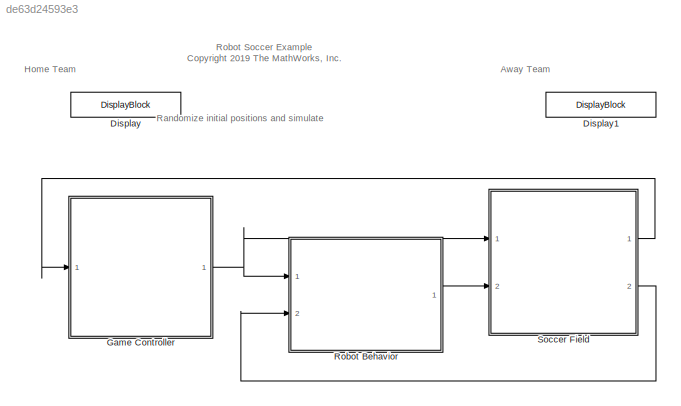
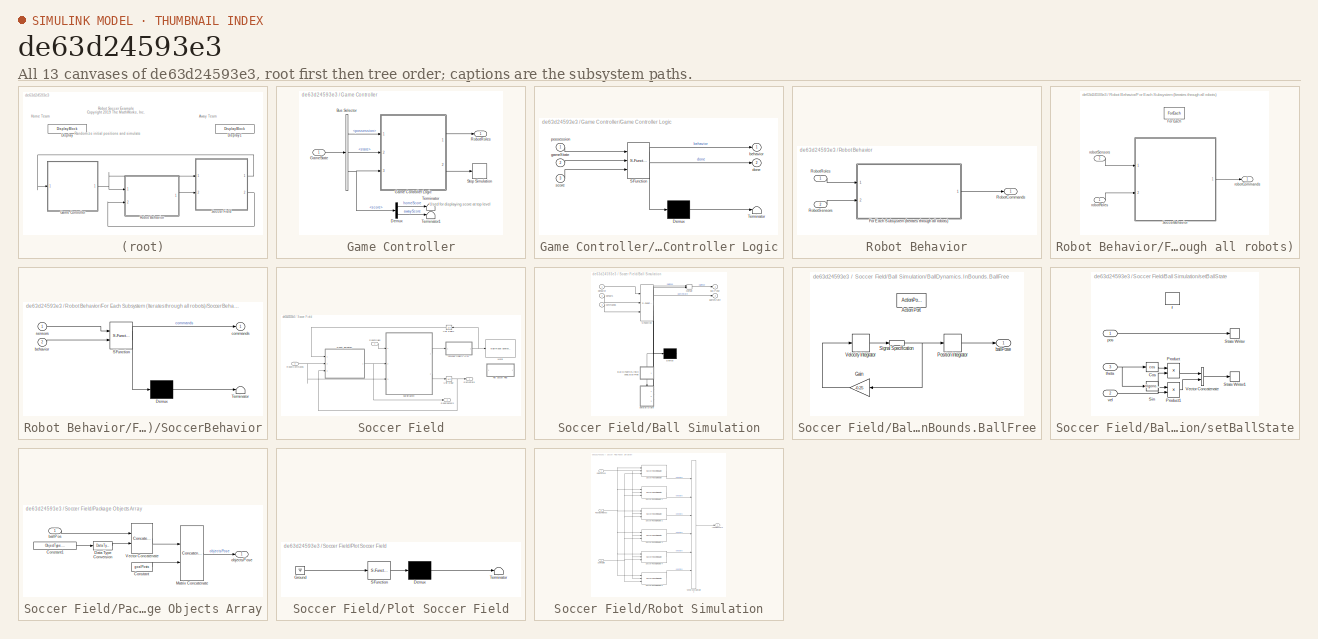
[diagram: thumbnail index - all 13 canvases of the model, root first then tree order]
MODEL slx_de63d24593e3
KIND model
CONFIG AbsTol = auto
CONFIG EnableMultiTasking = off
CONFIG FixedStep = sampleTime
CONFIG MaxStep = auto
CONFIG MinStep = auto
CONFIG PreLoadFcn = robotSoccerParams;
CONFIG RelTol = 1e-3
CONFIG SampleTimeConstraint = Unconstrained
CONFIG Solver = FixedStepAuto
CONFIG SolverName = FixedStepAuto
CONFIG StartTime = 0.0
CONFIG StopTime = inf
BLOCK [DisplayBlock] Display
  LabelPosition = Hide
BLOCK [DisplayBlock] Display1
  LabelPosition = Hide
BLOCK [SubSystem] Game Controller
  Ports = [1, 1]
  RequestExecContextInheritance = off
BLOCK [BusSelector] Game Controller/Bus Selector
  OutputAsBus = off
  OutputSignals = possession,state,score
  Ports = [1, 3]
BLOCK [Demux] Game Controller/Demux
  DisplayOption = bar
  Outputs = 2
  Ports = [1, 2]
BLOCK [SubSystem] Game Controller/Game Controller Logic
  ErrorFcn = Stateflow.Translate.translate
  PermitHierarchicalResolution = ExplicitOnly
  Ports = [3, 2]
  RequestExecContextInheritance = off
  SFBlockType = Chart
  TreatAsAtomicUnit = on
BLOCK [Demux] Game Controller/Game Controller Logic/ Demux 
  Outputs = 1
  Ports = [1, 1]
BLOCK [S-Function] Game Controller/Game Controller Logic/ SFunction 
  EnableBusSupport = off
  FunctionName = sf_sfun
  Parameters = defenderAwayPoses,defenderHomePoses,goalkeeperPoses
  PortCounts = [3 3]
  Ports = [3, 3]
  SFcnIsStateOwnerBlock = off
  SFunctionDeploymentMode = off
  Tag = Stateflow S-Function 4
BLOCK [Terminator] Game Controller/Game Controller Logic/ Terminator 
BLOCK [Outport] Game Controller/Game Controller Logic/behavior
  IconDisplay = Port number
  VectorParamsAs1DForOutWhenUnconnected = off
BLOCK [Outport] Game Controller/Game Controller Logic/done
  IconDisplay = Port number
  Port = 2
  VectorParamsAs1DForOutWhenUnconnected = off
BLOCK [Inport] Game Controller/Game Controller Logic/gameState
  IconDisplay = Port number
  Port = 2
BLOCK [Inport] Game Controller/Game Controller Logic/possession
  IconDisplay = Port number
BLOCK [Inport] Game Controller/Game Controller Logic/score
  IconDisplay = Port number
  Port = 3
BLOCK [Inport] Game Controller/GameState
  IconDisplay = Port number
BLOCK [Outport] Game Controller/RobotRoles
  IconDisplay = Port number
  VectorParamsAs1DForOutWhenUnconnected = off
BLOCK [Stop] Game Controller/Stop Simulation
BLOCK [Terminator] Game Controller/Terminator
BLOCK [Terminator] Game Controller/Terminator1
BLOCK [SubSystem] Robot Behavior
  Ports = [2, 1]
  RequestExecContextInheritance = off
BLOCK [SubSystem] Robot Behavior/For Each Subsystem (Iterates through all robots)
  Ports = [2, 1]
  RequestExecContextInheritance = off
  TreatAsAtomicUnit = on
BLOCK [ForEach] Robot Behavior/For Each Subsystem (Iterates through all robots)/For Each
  DisableCoverage = on
  Ports = []
BLOCK [SubSystem] Robot Behavior/For Each Subsystem (Iterates through all robots)/SoccerBehavior
  ErrorFcn = Stateflow.Translate.translate
  PermitHierarchicalResolution = ExplicitOnly
  Ports = [2, 1]
  RequestExecContextInheritance = off
  SFBlockType = Chart
  TreatAsAtomicUnit = on
BLOCK [Demux] Robot Behavior/For Each Subsystem (Iterates through all robots)/SoccerBehavior/ Demux 
  Outputs = 1
  Ports = [1, 1]
BLOCK [S-Function] Robot Behavior/For Each Subsystem (Iterates through all robots)/SoccerBehavior/ SFunction 
  EnableBusSupport = off
  FunctionName = sf_sfun
  Parameters = angThresh,attackerKickSpeed,attackerMaxGoalDist,attackerMinGoalDist,awayGoalPosition,defenderKickSpeed,distThresh,dribbleKickSpeed,dribbleTime,fieldCenter,fieldLimitsX,fieldLimitsY,goalThresh,goalkeeperKickSpeed,homeGoalPosition,outOfBoundsDist,robotDetectorMaxHits
  PortCounts = [2 2]
  Ports = [2, 2]
  SFcnIsStateOwnerBlock = off
  SFunctionDeploymentMode = off
  Tag = Stateflow S-Function 7
BLOCK [Terminator] Robot Behavior/For Each Subsystem (Iterates through all robots)/SoccerBehavior/ Terminator 
BLOCK [Inport] Robot Behavior/For Each Subsystem (Iterates through all robots)/SoccerBehavior/behavior
  IconDisplay = Port number
  Port = 2
BLOCK [Outport] Robot Behavior/For Each Subsystem (Iterates through all robots)/SoccerBehavior/commands
  IconDisplay = Port number
  VectorParamsAs1DForOutWhenUnconnected = off
BLOCK [Inport] Robot Behavior/For Each Subsystem (Iterates through all robots)/SoccerBehavior/sensors
  IconDisplay = Port number
BLOCK [Outport] Robot Behavior/For Each Subsystem (Iterates through all robots)/robotCommands
  ConcatenationDimension = 1
  IconDisplay = Port number
  VectorParamsAs1DForOutWhenUnconnected = off
BLOCK [Inport] Robot Behavior/For Each Subsystem (Iterates through all robots)/robotRoles
  IconDisplay = Port number
  Partition = on
  PartitionDimension = 1
  PartitionOffset = 0
  PartitionWidth = 1
BLOCK [Inport] Robot Behavior/For Each Subsystem (Iterates through all robots)/robotSensors
  IconDisplay = Port number
  Partition = on
  PartitionDimension = 1
  PartitionOffset = 0
  PartitionWidth = 1
  Port = 2
BLOCK [Outport] Robot Behavior/RobotCommands
  IconDisplay = Port number
  OutDataTypeStr = Bus: RobotCommandBus
  PortDimensions = 2
  VectorParamsAs1DForOutWhenUnconnected = off
BLOCK [Inport] Robot Behavior/RobotRoles
  IconDisplay = Port number
BLOCK [Inport] Robot Behavior/RobotSensors
  IconDisplay = Port number
  Port = 2
BLOCK [SubSystem] Soccer Field
  Ports = [2, 2]
  RequestExecContextInheritance = off
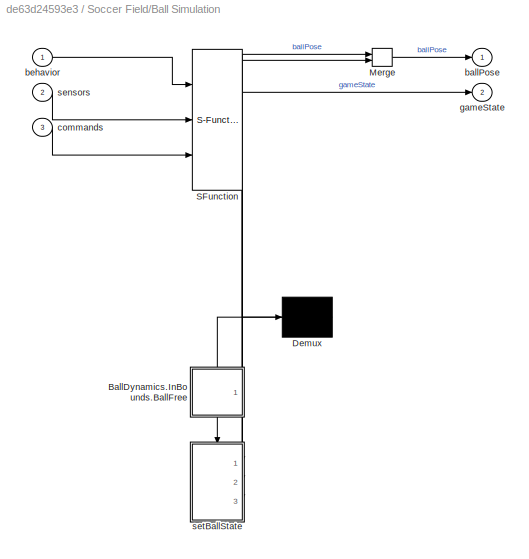
BLOCK [SubSystem] Soccer Field/Ball Simulation
  ErrorFcn = Stateflow.Translate.translate
  PermitHierarchicalResolution = ExplicitOnly
  Ports = [3, 2]
  RequestExecContextInheritance = off
  SFBlockType = Chart
  TreatAsAtomicUnit = on
BLOCK [Demux] Soccer Field/Ball Simulation/ Demux 
  Outputs = 1
  Ports = [1, 1]
BLOCK [Merge] Soccer Field/Ball Simulation/ Merge 
  Ports = [2, 1]
BLOCK [S-Function] Soccer Field/Ball Simulation/ SFunction 
  EnableBusSupport = off
  FunctionName = sf_sfun
  Parameters = ballAngleNoise,ballThresh,ballVelNoise,fieldLimitsX,fieldLimitsY,goalPosts,initBallPos,numRobots,outOfBoundsDist,robotRadius
  PortCounts = [3 6]
  Ports = [3, 6]
  SFcnIsStateOwnerBlock = off
  SFunctionDeploymentMode = off
  Tag = Stateflow S-Function 1
BLOCK [SubSystem] Soccer Field/Ball Simulation/BallDynamics.InBounds.BallFree
  Ports = [0, 1, 0, 0, 0, 0, 0, 1]
  PreDeleteFcn = Stateflow.SLINSF.SimulinkMan.removePreDeleteFcn
  RequestExecContextInheritance = off
  UndoDeleteFcn = Stateflow.SLINSF.SimulinkMan.restorePreDeleteFcn
BLOCK [ActionPort] Soccer Field/Ball Simulation/BallDynamics.InBounds.BallFree/Action Port
  CopyFcn = Stateflow.SLINSF.SimulinkMan.removeBlockPreDeleteFcn
  PreDeleteFcn = Stateflow.SLINSF.SimulinkMan.unsafePredeleteFcn
BLOCK [Gain] Soccer Field/Ball Simulation/BallDynamics.InBounds.BallFree/Gain
  Gain = -0.25
  OutDataTypeStr = Inherit: Inherit via internal rule
  ParamDataTypeStr = Inherit: Inherit via internal rule
  SaturateOnIntegerOverflow = off
BLOCK [DiscreteIntegrator] Soccer Field/Ball Simulation/BallDynamics.InBounds.BallFree/Position Integrator
  ICPrevOutput = DiscIntNeverNeededParam
  ICPrevScaledInput = DiscIntNeverNeededParam
  InitialCondition = initBallPos
  InitialConditionSetting = Auto
  Ports = [1, 1]
  SampleTime = -1
  StateName = ballPos
BLOCK [SignalSpecification] Soccer Field/Ball Simulation/BallDynamics.InBounds.BallFree/Signal Specification
  Dimensions = [1 2]
BLOCK [DiscreteIntegrator] Soccer Field/Ball Simulation/BallDynamics.InBounds.BallFree/Velocity Integrator
  ICPrevOutput = DiscIntNeverNeededParam
  ICPrevScaledInput = DiscIntNeverNeededParam
  InitialCondition = [0 0]
  InitialConditionSetting = Auto
  Ports = [1, 1]
  SampleTime = -1
  StateName = ballVel
BLOCK [Outport] Soccer Field/Ball Simulation/BallDynamics.InBounds.BallFree/ballPose
  IconDisplay = Port number
  VectorParamsAs1DForOutWhenUnconnected = off
BLOCK [Outport] Soccer Field/Ball Simulation/ballPose
  IconDisplay = Port number
  VectorParamsAs1DForOutWhenUnconnected = off
BLOCK [Inport] Soccer Field/Ball Simulation/behavior
  IconDisplay = Port number
BLOCK [Inport] Soccer Field/Ball Simulation/commands
  IconDisplay = Port number
  Port = 3
BLOCK [Outport] Soccer Field/Ball Simulation/gameState
  IconDisplay = Port number
  Port = 2
  VectorParamsAs1DForOutWhenUnconnected = off
BLOCK [Inport] Soccer Field/Ball Simulation/sensors
  IconDisplay = Port number
  Port = 2
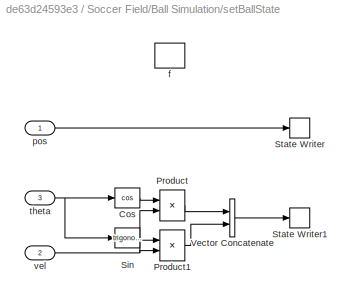
BLOCK [SubSystem] Soccer Field/Ball Simulation/setBallState
  Ports = [3, 0, 0, 1]
  PreDeleteFcn = Stateflow.SLINSF.SimulinkMan.removePreDeleteFcn
  RequestExecContextInheritance = off
  UndoDeleteFcn = Stateflow.SLINSF.SimulinkMan.restorePreDeleteFcn
BLOCK [Trigonometry] Soccer Field/Ball Simulation/setBallState/Cos
  Operator = cos
  Ports = [1, 1]
BLOCK [Product] Soccer Field/Ball Simulation/setBallState/Product
  InputSameDT = off
  OutDataTypeStr = Inherit: Inherit via internal rule
  Ports = [2, 1]
  RndMeth = Floor
  SaturateOnIntegerOverflow = off
BLOCK [Product] Soccer Field/Ball Simulation/setBallState/Product1
  InputSameDT = off
  OutDataTypeStr = Inherit: Inherit via internal rule
  Ports = [2, 1]
  RndMeth = Floor
  SaturateOnIntegerOverflow = off
BLOCK [Trigonometry] Soccer Field/Ball Simulation/setBallState/Sin
  Ports = [1, 1]
BLOCK [StateWriter] Soccer Field/Ball Simulation/setBallState/State Writer
  StateName = ballPos
  StateOwnerBlock = ../../BallDynamics.InBounds.BallFree/Position Integrator
BLOCK [StateWriter] Soccer Field/Ball Simulation/setBallState/State Writer1
  StateName = ballVel
  StateOwnerBlock = ../../BallDynamics.InBounds.BallFree/Velocity Integrator
BLOCK [Concatenate] Soccer Field/Ball Simulation/setBallState/Vector Concatenate
  ConcatenateDimension = 2
  Mode = Multidimensional array
  Ports = [2, 1]
BLOCK [TriggerPort] Soccer Field/Ball Simulation/setBallState/f
  CopyFcn = Stateflow.SLINSF.SimulinkMan.removeBlockPreDeleteFcn
  Ports = []
  PreDeleteFcn = Stateflow.SLINSF.SimulinkMan.unsafePredeleteFcn
  StatesWhenEnabling = held
  TriggerType = function-call
  VariantControl = (inherit)
BLOCK [Inport] Soccer Field/Ball Simulation/setBallState/pos
  IconDisplay = Port number
  OutDataTypeStr = double
  PortDimensions = [1 2]
  SignalType = real
  VarSizeSig = No
BLOCK [Inport] Soccer Field/Ball Simulation/setBallState/theta
  IconDisplay = Port number
  OutDataTypeStr = double
  Port = 3
  PortDimensions = 1
  SignalType = real
  VarSizeSig = No
BLOCK [Inport] Soccer Field/Ball Simulation/setBallState/vel
  IconDisplay = Port number
  OutDataTypeStr = double
  Port = 2
  PortDimensions = 1
  SignalType = real
  VarSizeSig = No
BLOCK [Outport] Soccer Field/GameState
  IconDisplay = Port number
  VectorParamsAs1DForOutWhenUnconnected = off
BLOCK [SubSystem] Soccer Field/Package Objects Array
  Ports = [1, 1]
  RequestExecContextInheritance = off
BLOCK [Constant] Soccer Field/Package Objects Array/Constant
  Value = goalPosts
  VectorParams1D = off
BLOCK [Constant] Soccer Field/Package Objects Array/Constant1
  Value = ObjectType.Ball
BLOCK [DataTypeConversion] Soccer Field/Package Objects Array/Data Type Conversion
  RndMeth = Floor
  SaturateOnIntegerOverflow = off
BLOCK [Concatenate] Soccer Field/Package Objects Array/Matrix Concatenate
  Mode = Multidimensional array
  Ports = [2, 1]
BLOCK [Concatenate] Soccer Field/Package Objects Array/Vector Concatenate
  ConcatenateDimension = 2
  Mode = Multidimensional array
  Ports = [2, 1]
BLOCK [Inport] Soccer Field/Package Objects Array/ballPos
  IconDisplay = Port number
BLOCK [Outport] Soccer Field/Package Objects Array/objectsPose
  IconDisplay = Port number
  VectorParamsAs1DForOutWhenUnconnected = off
BLOCK [SubSystem] Soccer Field/Plot Soccer Field
  ErrorFcn = Stateflow.Translate.translate
  PermitHierarchicalResolution = ExplicitOnly
  Ports = []
  RequestExecContextInheritance = off
  SFBlockType = MATLAB Function
  TreatAsAtomicUnit = on
BLOCK [Demux] Soccer Field/Plot Soccer Field/ Demux 
  Outputs = 1
  Ports = [1, 1]
BLOCK [Ground] Soccer Field/Plot Soccer Field/ Ground 
BLOCK [S-Function] Soccer Field/Plot Soccer Field/ SFunction 
  EnableBusSupport = off
  FunctionName = sf_sfun
  PortCounts = [1 1]
  Ports = [1, 1]
  SFcnIsStateOwnerBlock = off
  SFunctionDeploymentMode = off
  Tag = Stateflow S-Function 2
BLOCK [Terminator] Soccer Field/Plot Soccer Field/ Terminator 
BLOCK [SubSystem] Soccer Field/Robot Simulation
  Ports = [3, 1]
  RequestExecContextInheritance = off
BLOCK [Inport] Soccer Field/Robot Simulation/RobotCommands
  IconDisplay = Port number
  Port = 2
BLOCK [Reference] Soccer Field/Robot Simulation/Soccer Robot Simulator  REF=soccerRobotLib/Soccer Robot Simulator
  Ports = [3, 1]
  SourceBlock = soccerRobotLib/Soccer Robot Simulator
  SourceType = Soccer Robot Simulation
BLOCK [Reference] Soccer Field/Robot Simulation/Soccer Robot Simulator1  REF=soccerRobotLib/Soccer Robot Simulator
  Ports = [3, 1]
  SourceBlock = soccerRobotLib/Soccer Robot Simulator
  SourceType = Soccer Robot Simulation
BLOCK [Reference] Soccer Field/Robot Simulation/Soccer Robot Simulator2  REF=soccerRobotLib/Soccer Robot Simulator
  Ports = [3, 1]
  SourceBlock = soccerRobotLib/Soccer Robot Simulator
  SourceType = Soccer Robot Simulation
BLOCK [Reference] Soccer Field/Robot Simulation/Soccer Robot Simulator3  REF=soccerRobotLib/Soccer Robot Simulator
  Ports = [3, 1]
  SourceBlock = soccerRobotLib/Soccer Robot Simulator
  SourceType = Soccer Robot Simulation
BLOCK [Reference] Soccer Field/Robot Simulation/Soccer Robot Simulator4  REF=soccerRobotLib/Soccer Robot Simulator
  Ports = [3, 1]
  SourceBlock = soccerRobotLib/Soccer Robot Simulator
  SourceType = Soccer Robot Simulation
BLOCK [Reference] Soccer Field/Robot Simulation/Soccer Robot Simulator5  REF=soccerRobotLib/Soccer Robot Simulator
  Ports = [3, 1]
  SourceBlock = soccerRobotLib/Soccer Robot Simulator
  SourceType = Soccer Robot Simulation
BLOCK [Concatenate] Soccer Field/Robot Simulation/Vector Concatenate1
  NumInputs = 6
  Ports = [6, 1]
BLOCK [Inport] Soccer Field/Robot Simulation/gameState
  IconDisplay = Port number
  Port = 3
BLOCK [Inport] Soccer Field/Robot Simulation/objectsPose
  IconDisplay = Port number
BLOCK [Outport] Soccer Field/Robot Simulation/robotSensors
  IconDisplay = Port number
  VectorParamsAs1DForOutWhenUnconnected = off
BLOCK [Inport] Soccer Field/RobotCommands
  IconDisplay = Port number
  Port = 2
BLOCK [Inport] Soccer Field/RobotRoles
  IconDisplay = Port number
BLOCK [Outport] Soccer Field/RobotSensors
  IconDisplay = Port number
  Port = 2
  VectorParamsAs1DForOutWhenUnconnected = off
BLOCK [UnitDelay] Soccer Field/Unit Delay
  HasFrameUpgradeWarning = on
  InitialCondition = initGameState
  SampleTime = -1
BLOCK [UnitDelay] Soccer Field/Unit Delay1
  HasFrameUpgradeWarning = on
  InitialCondition = [initBallPos double(ObjectType.Ball); goalPosts]
  SampleTime = -1
BLOCK [Reference] Soccer Field/World  REF=mobileRoboticsLib/Environments/Multi-Robot Environment
  Ports = [1]
  SourceBlock = mobileRoboticsLib/Environments/Multi-Robot Environment
  SourceProductName = Mobile Robotics Simulation Toolbox
  SourceType = Multi-Robot Environment
ANNOTATION (root): Randomize initial positions and simulate
ANNOTATION (root): Robot Soccer Example <copyright redacted>
ANNOTATION (root): Away Team
ANNOTATION (root): Home Team
ANNOTATION Game Controller: Used for displaying score at top level
LINE Game Controller/Bus Selector:1 -> Game Controller/Game Controller Logic:1
LINE Game Controller/Bus Selector:2 -> Game Controller/Game Controller Logic:2
NET Game Controller/Bus Selector:3 -> Game Controller/Demux:1, Game Controller/Game Controller Logic:3
LINE Game Controller/Demux:1 -> Game Controller/Terminator:1
LINE Game Controller/Demux:2 -> Game Controller/Terminator1:1
LINE Game Controller/Game Controller Logic:1 -> Game Controller/RobotRoles:1
LINE Game Controller/Game Controller Logic:2 -> Game Controller/Stop Simulation:1
LINE Game Controller/GameState:1 -> Game Controller/Bus Selector:1
NET Game Controller:1 -> Robot Behavior:1, Soccer Field:1
LINE Robot Behavior/For Each Subsystem (Iterates through all robots)/SoccerBehavior:1 -> Robot Behavior/For Each Subsystem (Iterates through all robots)/robotCommands:1
LINE Robot Behavior/For Each Subsystem (Iterates through all robots)/robotRoles:1 -> Robot Behavior/For Each Subsystem (Iterates through all robots)/SoccerBehavior:2
LINE Robot Behavior/For Each Subsystem (Iterates through all robots)/robotSensors:1 -> Robot Behavior/For Each Subsystem (Iterates through all robots)/SoccerBehavior:1
LINE Robot Behavior/For Each Subsystem (Iterates through all robots):1 -> Robot Behavior/RobotCommands:1
LINE Robot Behavior/RobotRoles:1 -> Robot Behavior/For Each Subsystem (Iterates through all robots):1
LINE Robot Behavior/RobotSensors:1 -> Robot Behavior/For Each Subsystem (Iterates through all robots):2
LINE Robot Behavior:1 -> Soccer Field:2
LINE Soccer Field/Ball Simulation:1 -> Soccer Field/Package Objects Array:1
LINE Soccer Field/Ball Simulation:2 -> Soccer Field/Unit Delay:1
LINE Soccer Field/Package Objects Array/Constant1:1 -> Soccer Field/Package Objects Array/Data Type Conversion:1
LINE Soccer Field/Package Objects Array/Constant:1 -> Soccer Field/Package Objects Array/Matrix Concatenate:2
LINE Soccer Field/Package Objects Array/Data Type Conversion:1 -> Soccer Field/Package Objects Array/Vector Concatenate:2
LINE Soccer Field/Package Objects Array/Matrix Concatenate:1 -> Soccer Field/Package Objects Array/objectsPose:1
LINE Soccer Field/Package Objects Array/Vector Concatenate:1 -> Soccer Field/Package Objects Array/Matrix Concatenate:1
LINE Soccer Field/Package Objects Array/ballPos:1 -> Soccer Field/Package Objects Array/Vector Concatenate:1
NET Soccer Field/Package Objects Array:1 -> Soccer Field/Unit Delay1:1, Soccer Field/World:1
NET Soccer Field/Robot Simulation/RobotCommands:1 -> Soccer Field/Robot Simulation/Soccer Robot Simulator1:1, Soccer Field/Robot Simulation/Soccer Robot Simulator2:1, Soccer Field/Robot Simulation/Soccer Robot Simulator3:1, Soccer Field/Robot Simulation/Soccer Robot Simulator4:1, Soccer Field/Robot Simulation/Soccer Robot Simulator5:1, Soccer Field/Robot Simulation/Soccer Robot Simulator:1
LINE Soccer Field/Robot Simulation/Soccer Robot Simulator1:1 -> Soccer Field/Robot Simulation/Vector Concatenate1:2
LINE Soccer Field/Robot Simulation/Soccer Robot Simulator2:1 -> Soccer Field/Robot Simulation/Vector Concatenate1:3
LINE Soccer Field/Robot Simulation/Soccer Robot Simulator3:1 -> Soccer Field/Robot Simulation/Vector Concatenate1:4
LINE Soccer Field/Robot Simulation/Soccer Robot Simulator4:1 -> Soccer Field/Robot Simulation/Vector Concatenate1:5
LINE Soccer Field/Robot Simulation/Soccer Robot Simulator5:1 -> Soccer Field/Robot Simulation/Vector Concatenate1:6
LINE Soccer Field/Robot Simulation/Soccer Robot Simulator:1 -> Soccer Field/Robot Simulation/Vector Concatenate1:1
LINE Soccer Field/Robot Simulation/Vector Concatenate1:1 -> Soccer Field/Robot Simulation/robotSensors:1
NET Soccer Field/Robot Simulation/gameState:1 -> Soccer Field/Robot Simulation/Soccer Robot Simulator1:3, Soccer Field/Robot Simulation/Soccer Robot Simulator2:3, Soccer Field/Robot Simulation/Soccer Robot Simulator3:3, Soccer Field/Robot Simulation/Soccer Robot Simulator4:3, Soccer Field/Robot Simulation/Soccer Robot Simulator5:3, Soccer Field/Robot Simulation/Soccer Robot Simulator:3
NET Soccer Field/Robot Simulation/objectsPose:1 -> Soccer Field/Robot Simulation/Soccer Robot Simulator1:2, Soccer Field/Robot Simulation/Soccer Robot Simulator2:2, Soccer Field/Robot Simulation/Soccer Robot Simulator3:2, Soccer Field/Robot Simulation/Soccer Robot Simulator4:2, Soccer Field/Robot Simulation/Soccer Robot Simulator5:2, Soccer Field/Robot Simulation/Soccer Robot Simulator:2
NET Soccer Field/Robot Simulation:1 -> Soccer Field/Ball Simulation:2, Soccer Field/RobotSensors:1
NET Soccer Field/RobotCommands:1 -> Soccer Field/Ball Simulation:3, Soccer Field/Robot Simulation:2
LINE Soccer Field/RobotRoles:1 -> Soccer Field/Ball Simulation:1
LINE Soccer Field/Unit Delay1:1 -> Soccer Field/Robot Simulation:1
NET Soccer Field/Unit Delay:1 -> Soccer Field/GameState:1, Soccer Field/Robot Simulation:3
LINE Soccer Field:1 -> Game Controller:1
LINE Soccer Field:2 -> Robot Behavior:2
note: NET lines group one-source signal fan-out (src -> all destinations, sorted); 1:1 wires keep LINE
CHART Soccer Field/Ball Simulation states=13 transitions=21
  STATE_LABEL "BallPossession\nen:\ngameState.possession = 0;\nen,du:\n% Calculate distances from robots to ball\n% (Goalkeepers get 2x the range)\nfor idx = 1:numRobots\n    ballDists(idx) = norm( sensors(idx).pose(1:2) - ballPose' );\n    if behavior(idx).role == Role.Goalkeeper\n        ballDists(idx) = ballDists(idx)/2;\n    end\nend\n% Find the robot index of the current and latest possessions\nrobotIdx = findPossession...<+213ch>"
  STATE_LABEL "BallDynamics\nen:\ncoder.extrinsic('randn'); % Lets us use MATLAB's interpreted RNG\nsetBallState(initBallPos,0,0);"
  STATE_LABEL 'InBounds\nen, du:\nrandNum = randn(2,1);\ngameState.state = getGameState;'
  STATE_LABEL 'BallFree'
  STATE_LABEL 'BallHeld\nen: gameState.possession = robotIdx;\nen,du:\nballPose = [robotPose(1) robotPose(2)] + ...\n    (robotRadius+ballThresh)*[cos(robotPose(3)) sin(robotPose(3))];\n'
  STATE_LABEL '[action == RobotAction.KickBall]\n{setBallState(ballPose,ballVel + ballVelNoise*randNum(1), ... \n robotPose(3) + ballAngleNoise*randNum(2));\ngameState.possession = 0;}'
  STATE_LABEL '[after(2,sec) && ... \n robotIdx > 0]'
  STATE_LABEL 'OutOfBounds\nen:\n% If a goal is scored, increment the score\nif gameState.state == GameState.GoalScored\n    ballPose = initBallPos;\n    teamIdx = behavior(lastPossession).team;\n    gameState.score(teamIdx) = gameState.score(teamIdx) + 1;\n    % Else, place the ball back in bounds\nelse\n    ballPose = placeBallInBounds();\nend\nsetBallState(ballPose,0,robotPose(3));'
  STATE_LABEL 'after(1,sec)'
  STATE_LABEL '[gameState.state ~= GameState.InPlay]'
  STATE_LABEL 'InBounds\nen, du:\nrandNum = randn(2,1);\ngameState.state = getGameState;'
  STATE_LABEL 'BallFree'
  STATE_LABEL 'BallHeld\nen: gameState.possession = robotIdx;\nen,du:\nballPose = [robotPose(1) robotPose(2)] + ...\n    (robotRadius+ballThresh)*[cos(robotPose(3)) sin(robotPose(3))];\n'
  STATE_LABEL '[action == RobotAction.KickBall]\n{setBallState(ballPose,ballVel + ballVelNoise*randNum(1), ... \n robotPose(3) + ballAngleNoise*randNum(2));\ngameState.possession = 0;}'
  STATE_LABEL '[after(2,sec) && ... \n robotIdx > 0]'
  STATE_LABEL 'BallFree'
  STATE_LABEL 'BallHeld\nen: gameState.possession = robotIdx;\nen,du:\nballPose = [robotPose(1) robotPose(2)] + ...\n    (robotRadius+ballThresh)*[cos(robotPose(3)) sin(robotPose(3))];\n'
  STATE_LABEL 'OutOfBounds\nen:\n% If a goal is scored, increment the score\nif gameState.state == GameState.GoalScored\n    ballPose = initBallPos;\n    teamIdx = behavior(lastPossession).team;\n    gameState.score(teamIdx) = gameState.score(teamIdx) + 1;\n    % Else, place the ball back in bounds\nelse\n    ballPose = placeBallInBounds();\nend\nsetBallState(ballPose,0,robotPose(3));'
  STATE_LABEL 'setBallState(pos,vel,theta)'
  STATE_LABEL 'rIdx = findPossession'
  STATE_LABEL 'nearIdx = findNearestHoldingRobot'
  STATE_LABEL 'SCRIPT:\nfunction rIdx = findNearestHoldingRobot\n% Finds possession based on the commands to all the robots \n% and their distances to the ball\n\n[~,inds] = sort(ballDists);\nrIdx = 0;\nfor idx = 1:numRobots\n    if (commands(inds(idx)).action == RobotAction.HoldBall) && ....\n       (ballDists(inds(idx)) <= ballThresh)\n        rIdx = inds(idx);\n        return;\n    end\nend\n\nend'
  STATE_LABEL '% If the robot that previously possessed the ball is still holding it, keep the same index\n[(gameState.possession > 0) && ...\n(commands(gameState.possession).action == RobotAction.HoldBall)]'
  STATE_LABEL '% Else, find another valid robot holder\n{rIdx = findNearestHoldingRobot;}'
  STATE_LABEL '{rIdx = gameState.possession;}'
  STATE_LABEL 'nearIdx = findNearestHoldingRobot'
  STATE_LABEL 'SCRIPT:\nfunction rIdx = findNearestHoldingRobot\n% Finds possession based on the commands to all the robots \n% and their distances to the ball\n\n[~,inds] = sort(ballDists);\nrIdx = 0;\nfor idx = 1:numRobots\n    if (commands(inds(idx)).action == RobotAction.HoldBall) && ....\n       (ballDists(inds(idx)) <= ballThresh)\n        rIdx = inds(idx);\n        return;\n    end\nend\n\nend'
  STATE_LABEL 'state = getGameState'
  STATE_LABEL 'Returns the game state depending on the position of the ball on the field'
  STATE_LABEL '[ballPose(1) <= fieldLimitsX(1) || ballPose(1) >= fieldLimitsX(2) || ...\n ballPose(2) <= fieldLimitsY(1) || ballPose(2) >= fieldLimitsY(2)]'
  STATE_LABEL '{state = GameState.InPlay;}'
  STATE_LABEL '[ballPose(2)<=goalPosts(1,2) && ...\nballPose(2) >= goalPosts(2,2)]'
  STATE_LABEL '{state = GameState.OutOfPlay;}'
  STATE_LABEL '{state = GameState.GoalScored;}'
  STATE_LABEL 'Returns the game state depending on the position of the ball on the field'
  STATE_LABEL 'newPose = placeBallInBounds'
  STATE_LABEL 'Calculates the new pose of the ball when returning from out of bounds'
  STATE_LABEL '{\nnewPose = [ ... \n max( fieldLimitsX(1)+outOfBoundsDist , min(ballPose(1),fieldLimitsX(2)-outOfBoundsDist) ), ...\nmax( fieldLimitsY(1)+outOfBoundsDist , min(ballPose(2),fieldLimitsY(2)-outOfBoundsDist) ) ...\n];\n}'
  STATE_LABEL 'Calculates the new pose of the ball when returning from out of bounds'
CHART Soccer Field/Plot Soccer Field states=1 transitions=1
  STATE_LABEL 'eML_blk_kernel()'
  STATE_LABEL "SCRIPT:\nfunction plotSoccerField\n% Plots the soccer field once the figure window for the environment has\n% been initialized\n\ncoder.extrinsic('evalin');\npersistent hasPlotted\nif isempty(hasPlotted)\n    evalin('base','plotSoccerField');\n    hasPlotted = true;\nend\n"
CHART Game Controller/Game Controller Logic states=6 transitions=8
  STATE_LABEL 'GameOn\nen:\ndone = false;\n% Assign player strategy\nassignRobotStrategies\n% Constantly check possession\nen,du:\nif possession > 0\n    posTeam = behavior(possession).team;\nelse\n    posTeam = 0;\nend\nfor idx = 1:numRobots\n    behavior(idx).possessingTeam = posTeam;\nend'
  STATE_LABEL 'HomeTeamAttacks\nen:\nbehavior(1).role = Role.Goalkeeper;\nbehavior(2).role = Role.Goalkeeper;\nbehavior(3).role = Role.Attacker;\nbehavior(4).role = Role.Defender;\nbehavior(5).role = Role.Attacker;\nbehavior(6).role = Role.Defender;\n'
  STATE_LABEL 'HomeTeamDefends\nen:\nbehavior(1).role = Role.Goalkeeper;\nbehavior(2).role = Role.Goalkeeper;\nbehavior(3).role = Role.Defender;\nbehavior(4).role = Role.Attacker;\nbehavior(5).role = Role.Defender;\nbehavior(6).role = Role.Attacker;'
  STATE_LABEL '[hasChangedFrom(gameState,GameState.InPlay) || ... \n posTeam == 2]'
  STATE_LABEL '[hasChangedFrom(gameState,GameState.InPlay) || ...\n posTeam == 1]'
  STATE_LABEL 'HomeTeamAttacks\nen:\nbehavior(1).role = Role.Goalkeeper;\nbehavior(2).role = Role.Goalkeeper;\nbehavior(3).role = Role.Attacker;\nbehavior(4).role = Role.Defender;\nbehavior(5).role = Role.Attacker;\nbehavior(6).role = Role.Defender;\n'
  STATE_LABEL 'HomeTeamDefends\nen:\nbehavior(1).role = Role.Goalkeeper;\nbehavior(2).role = Role.Goalkeeper;\nbehavior(3).role = Role.Defender;\nbehavior(4).role = Role.Attacker;\nbehavior(5).role = Role.Defender;\nbehavior(6).role = Role.Attacker;'
  STATE_LABEL 'assignRobotStrategies'
  STATE_LABEL 'Assigns initial robot teams, roles, and default formation poses'
  STATE_LABEL '{\n% Assign teams\nbehavior(1).team = 1;\nbehavior(2).team = 2;\nbehavior(3).team = 1;\nbehavior(4).team = 2;\nbehavior(5).team = 1;\nbehavior(6).team = 2;\n}'
  STATE_LABEL '{\n% Assign goalkeeper roles and default poses\nbehavior(1).role = Role.Goalkeeper;\nbehavior(1).formationPose = goalkeeperPoses(:,1);\nbehavior(2).role = Role.Goalkeeper;\nbehavior(2).formationPose = goalkeeperPoses(:,2);\n}'
  STATE_LABEL '{\n% Assign defender default poses\nbehavior(3).formationPose = defenderHomePoses(:,1);\nbehavior(4).formationPose = defenderAwayPoses(:,1);\nbehavior(5).formationPose = defenderHomePoses(:,2);\nbehavior(6).formationPose = defenderAwayPoses(:,2);\n}'
  STATE_LABEL 'Assigns initial robot teams, roles, and default formation poses'
  STATE_LABEL 'GameOver\nen:\ndone = true;'
CHART Robot Behavior/For Each Subsystem 
(Iterates through all robots)/SoccerBehavior states=35 transitions=89
  STATE_LABEL 'ExecuteBehavior\nen,du:\nprevRole = behavior.role;'
  STATE_LABEL "Attack\n% Attack logic: Go to the ball, carry it near the goal, and shoot!\nen:\nif behavior.team == 1\n    goalPose = [awayGoalPosition';0];\nelse\n    goalPose = [homeGoalPosition';pi];\nend"
  STATE_LABEL 'GoToBall\nen:\ncommands.action = RobotAction.HoldBall;\nen,du:\n[ballRange,ballAngle] = detectBall(sensors.detections);\ncommands.robotVelocity = trackDetection(ballRange,ballAngle);'
  STATE_LABEL 'KickBall\nen:\ncommands.action = RobotAction.KickBall;\ncommands.robotVelocity = [0;0;0];\ncommands.ballVelocity = attackerKickSpeed;'
  STATE_LABEL 'GoToGoal\nen:\ncommands.action = RobotAction.HoldBall;\nen,du:\n[goalDistance,goalAngle] = calcBearing(goalPose);\ncommands.robotVelocity = goToPose(goalPose);'
  STATE_LABEL 'Dribble\n%Dribble the ball if held for too long\nen:\ncommands.action = RobotAction.KickBall;\ncommands.ballVelocity = dribbleKickSpeed;'
  STATE_LABEL "BackUp\n% Move out of goal if too close\nen:\ncommands.action = RobotAction.HoldBall;\nen,du:\ncommands.robotVelocity = goToPose([fieldCenter';pi/2]);\n"
  STATE_LABEL '[sensors.ballHeld]'
  STATE_LABEL '[after(1,sec)]'
  STATE_LABEL '[goalDistance <= goalThresh && ...\n abs(goalAngle) < angThresh]'
  STATE_LABEL '[after(dribbleTime,sec)]'
  STATE_LABEL '[after(0.5,sec)]'
  STATE_LABEL '[abs(sensors.pose(1) - goalPose(1)) < ... \nattackerMinGoalDist]'
  STATE_LABEL '[abs(sensors.pose(1) - goalPose(1)) > ... \nattackerMaxGoalDist]'
  STATE_LABEL 'Defend\n% Defense logic: If own team has ball possession, go to the goal. Else, chase after the ball.'
  STATE_LABEL 'DefensiveActions\nen,du:\nballRange = detectBall(sensors.detections);'
  STATE_LABEL 'DefendGoal\nen:\ncommands.action = RobotAction.HoldBall;\ngoalPose = behavior.formationPose;\nen,du:\ncommands.robotVelocity = goToPose(goalPose);'
  STATE_LABEL 'ChaseBall\nen,du:\nif behavior.possessingTeam == 0\n    commands.action = RobotAction.HoldBall;\nelse\n    commands.action = RobotAction.DoNothing;\nend\n[ballRange,ballAngle] = detectBall(sensors.detections);\ncommands.robotVelocity = trackDetection(ballRange,ballAngle);'
  STATE_LABEL '[behavior.possessingTeam == behavior.team]'
  STATE_LABEL '[behavior.possessingTeam == 0 ...\n && distToOwnGoal < diff(fieldLimitsX)/2 && ...\n ballRange < diff(fieldLimitsX)/2 && ballRange > 0]'
  STATE_LABEL "TurnToGoal\nen:\nif behavior.team == 1\n    goalPose = [awayGoalPosition';0];\nelse\n    goalPose = [homeGoalPosition';pi];\nend\nen,du:\ncommands.action = RobotAction.HoldBall;\n[commands.robotVelocity,isdone] = turnToPoint(goalPose);"
  STATE_LABEL 'KickBall\nen:\ncommands.action = RobotAction.KickBall;\ncommands.robotVelocity = [0;0;0];\ncommands.ballVelocity = defenderKickSpeed;'
  STATE_LABEL 'dist = distToOwnGoal'
  STATE_LABEL '[behavior.team == 1]'
  STATE_LABEL "{dist = calcBearing(awayGoalPosition');}"
  STATE_LABEL "{dist = calcBearing(homeGoalPosition');}"
  STATE_LABEL '[sensors.ballHeld]'
  STATE_LABEL '[isdone || after(10,sec)]'
  STATE_LABEL '[after(1,sec)]'
  STATE_LABEL 'Goalkeep\n% Goalkeeper logic: Wait for the ball and try hold it if nearby. If the ball is held, kick it far away!\nen:\ngoalPose = behavior.formationPose;\n'
  STATE_LABEL 'GoalkeeperActions\nen, du:\n[ballRange,ballAngle] = detectBall(sensors.detections);\n'
  STATE_LABEL 'TurnToBall\nen:\ncommands.robotVelocity = [0;0;0];\ncommands.action = RobotAction.HoldBall;\nen,du:\nif ballAngle > angThresh\n    commands.robotVelocity(3) = 1;\nelseif ballAngle < -angThresh\n    commands.robotVelocity(3) = -1;\nelse\n    commands.robotVelocity(3) = 0;\nend\n'
  STATE_LABEL 'GoToGoal\nen,du:\n[commands.robotVelocity,isdone] = goToPose(goalPose);\ncommands.action = RobotAction.HoldBall;'
  STATE_LABEL '[isdone && ballRange > 0]'
  STATE_LABEL '[ballRange < 0]'
  STATE_LABEL "TurnToCenterline\nen,du:\ncommands.robotVelocity = ...\n    goToPose([fieldCenter';0]);"
  STATE_LABEL 'KickBall\nen:\ncommands.robotVelocity = [0;0;0];\ncommands.action = RobotAction.KickBall;\ncommands.ballVelocity = goalkeeperKickSpeed;'
  STATE_LABEL '[sensors.ballHeld]'
  STATE_LABEL '[after(1,sec)]'
  STATE_LABEL '[after(3,sec)]'
